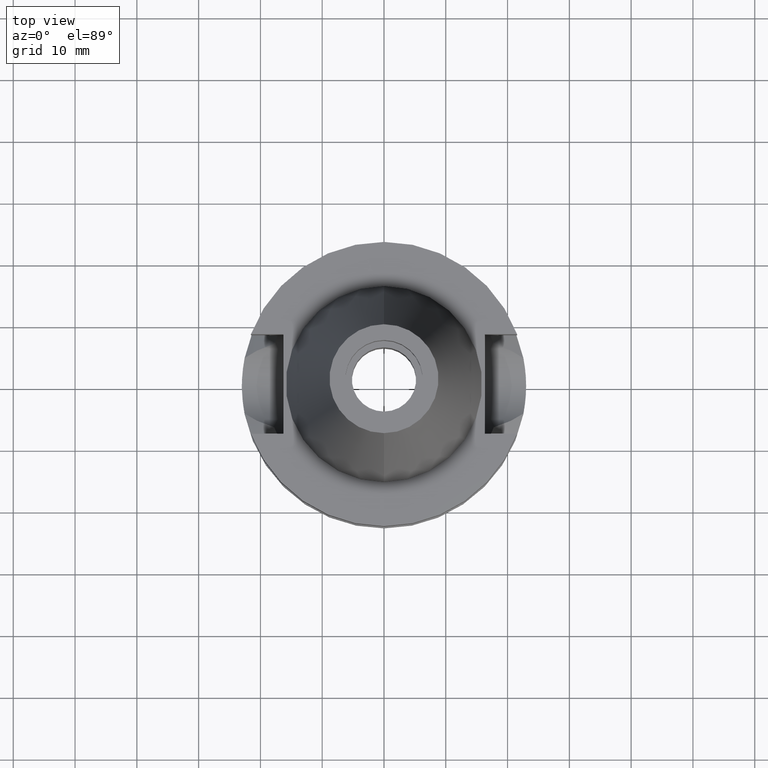
[diagram: clean part render]
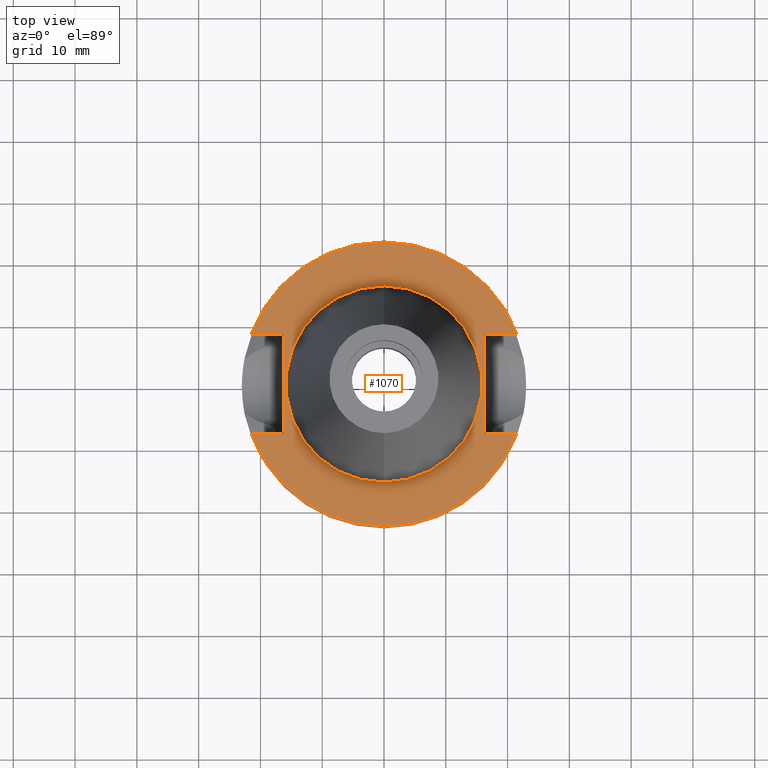
[diagram: same view with one face highlighted and labeled with its STEP entity id]
A machine part, top view. The second image highlights one B-rep face of the part: STEP entity #1070.
In plain terms, the highlighted planar face has unit normal (0, 0, -1).
Its self-contained STEP definition (entity closure, byte-faithful):
#41 = DIRECTION ( 'NONE',  ( -1.000000000000000000, 9.347030801892000173E-14, 0.0000000000000000000 ) ) ;
#45 = ORIENTED_EDGE ( 'NONE', *, *, #2276, .F. ) ;
#123 = VERTEX_POINT ( 'NONE', #1939 ) ;
#136 = EDGE_CURVE ( 'NONE', #1982, #123, #499, .T. ) ;
#147 = ORIENTED_EDGE ( 'NONE', *, *, #521, .F. ) ;
#198 = CARTESIAN_POINT ( 'NONE',  ( 16.29999999999999716, 8.050000000000000711, -1.000000000000000000 ) ) ;
#230 = ORIENTED_EDGE ( 'NONE', *, *, #1022, .F. ) ;
#356 = CARTESIAN_POINT ( 'NONE',  ( 0.0000000000000000000, 1.873342208656000186E-14, -1.000000000000000000 ) ) ;
#372 = VERTEX_POINT ( 'NONE', #1528 ) ;
#499 = LINE ( 'NONE', #2163, #699 ) ;
#500 = PLANE ( 'NONE',  #2941 ) ;
#521 = EDGE_CURVE ( 'NONE', #2523, #1716, #2833, .T. ) ;
#592 = ORIENTED_EDGE ( 'NONE', *, *, #626, .F. ) ;
#626 = EDGE_CURVE ( 'NONE', #2936, #372, #747, .T. ) ;
#679 = DIRECTION ( 'NONE',  ( 0.0000000000000000000, 0.0000000000000000000, 1.000000000000000000 ) ) ;
#685 = EDGE_CURVE ( 'NONE', #2629, #2936, #2553, .T. ) ;
#699 = VECTOR ( 'NONE', #41, 1000.000000000000000 ) ;
#709 = CARTESIAN_POINT ( 'NONE',  ( 21.54524309446999908, 8.050000000000000711, -1.000000000000000000 ) ) ;
#711 = LINE ( 'NONE', #2394, #1868 ) ;
#714 = DIRECTION ( 'NONE',  ( 0.0000000000000000000, -1.000000000000000000, 0.0000000000000000000 ) ) ;
#726 = EDGE_LOOP ( 'NONE', ( #147, #230 ) ) ;
#747 = CIRCLE ( 'NONE', #1196, 23.00000000000000000 ) ;
#814 = EDGE_CURVE ( 'NONE', #2551, #1982, #711, .T. ) ;
#841 = CARTESIAN_POINT ( 'NONE',  ( 16.29999999999999716, -8.050000000000000711, -1.000000000000000000 ) ) ;
#913 = CARTESIAN_POINT ( 'NONE',  ( 0.0000000000000000000, 1.873342208656000186E-14, -1.000000000000000000 ) ) ;
#936 = LINE ( 'NONE', #1882, #1023 ) ;
#1022 = EDGE_CURVE ( 'NONE', #1716, #2523, #1581, .T. ) ;
#1023 = VECTOR ( 'NONE', #1698, 1000.000000000000000 ) ;
#1053 = CARTESIAN_POINT ( 'NONE',  ( 0.0000000000000000000, 15.87500000000000000, -0.9999999999998000488 ) ) ;
#1070 = ADVANCED_FACE ( 'NONE', ( #2657, #1451 ), #500, .F. ) ;
#1074 = ORIENTED_EDGE ( 'NONE', *, *, #814, .F. ) ;
#1087 = AXIS2_PLACEMENT_3D ( 'NONE', #913, #1402, #2349 ) ;
#1112 = DIRECTION ( 'NONE',  ( 1.000000000000000000, -9.347030801892000173E-14, 0.0000000000000000000 ) ) ;
#1113 = ORIENTED_EDGE ( 'NONE', *, *, #2513, .T. ) ;
#1143 = VECTOR ( 'NONE', #2037, 1000.000000000000000 ) ;
#1196 = AXIS2_PLACEMENT_3D ( 'NONE', #356, #2785, #2097 ) ;
#1199 = DIRECTION ( 'NONE',  ( 0.0000000000000000000, 1.000000000000000000, 0.0000000000000000000 ) ) ;
#1275 = CARTESIAN_POINT ( 'NONE',  ( -16.29999999999999716, 8.050000000000000711, -1.000000000000000000 ) ) ;
#1284 = DIRECTION ( 'NONE',  ( 0.0000000000000000000, 1.000000000000000000, 0.0000000000000000000 ) ) ;
#1292 = LINE ( 'NONE', #2248, #1143 ) ;
#1307 = CARTESIAN_POINT ( 'NONE',  ( 16.29999999999999716, 8.050000000000000711, -1.000000000000000000 ) ) ;
#1332 = VERTEX_POINT ( 'NONE', #1307 ) ;
#1383 = LINE ( 'NONE', #198, #2296 ) ;
#1402 = DIRECTION ( 'NONE',  ( 0.0000000000000000000, 0.0000000000000000000, -1.000000000000000000 ) ) ;
#1432 = CARTESIAN_POINT ( 'NONE',  ( 21.54524309446999908, -8.050000000000000711, -1.000000000000000000 ) ) ;
#1451 = FACE_BOUND ( 'NONE', #726, .T. ) ;
#1465 = CARTESIAN_POINT ( 'NONE',  ( 0.0000000000000000000, -15.87500000000000000, -0.9999999999998000488 ) ) ;
#1510 = CARTESIAN_POINT ( 'NONE',  ( 0.0000000000000000000, 1.873342208656000186E-14, -0.9999999999998000488 ) ) ;
#1528 = CARTESIAN_POINT ( 'NONE',  ( -21.54524309446999908, -8.050000000000000711, -1.000000000000000000 ) ) ;
#1571 = CARTESIAN_POINT ( 'NONE',  ( 0.0000000000000000000, 1.873342208656000186E-14, -0.9999999999998000488 ) ) ;
#1577 = DIRECTION ( 'NONE',  ( 0.0000000000000000000, 0.0000000000000000000, 1.000000000000000000 ) ) ;
#1581 = CIRCLE ( 'NONE', #2787, 15.87500000000000000 ) ;
#1595 = ORIENTED_EDGE ( 'NONE', *, *, #2970, .F. ) ;
#1649 = EDGE_CURVE ( 'NONE', #1332, #2247, #936, .T. ) ;
#1698 = DIRECTION ( 'NONE',  ( 1.000000000000000000, 9.380896855521999773E-14, 0.0000000000000000000 ) ) ;
#1703 = DIRECTION ( 'NONE',  ( 0.0000000000000000000, 0.0000000000000000000, -1.000000000000000000 ) ) ;
#1716 = VERTEX_POINT ( 'NONE', #1465 ) ;
#1868 = VECTOR ( 'NONE', #1199, 1000.000000000000000 ) ;
#1882 = CARTESIAN_POINT ( 'NONE',  ( 16.29999999999999716, 8.050000000000000711, -1.000000000000000000 ) ) ;
#1903 = CIRCLE ( 'NONE', #1087, 23.00000000000000000 ) ;
#1920 = CARTESIAN_POINT ( 'NONE',  ( 16.29999999999999716, -8.050000000000000711, -1.000000000000000000 ) ) ;
#1939 = CARTESIAN_POINT ( 'NONE',  ( -21.54524309446999908, 8.050000000000000711, -1.000000000000000000 ) ) ;
#1982 = VERTEX_POINT ( 'NONE', #1275 ) ;
#2037 = DIRECTION ( 'NONE',  ( -1.000000000000000000, -9.313164748262000573E-14, 0.0000000000000000000 ) ) ;
#2040 = ORIENTED_EDGE ( 'NONE', *, *, #1649, .T. ) ;
#2042 = EDGE_LOOP ( 'NONE', ( #1113, #592, #2512, #1595, #2040, #45, #2470, #1074 ) ) ;
#2097 = DIRECTION ( 'NONE',  ( 0.0000000000000000000, -1.000000000000000000, 0.0000000000000000000 ) ) ;
#2162 = AXIS2_PLACEMENT_3D ( 'NONE', #1510, #1577, #1284 ) ;
#2163 = CARTESIAN_POINT ( 'NONE',  ( -16.29999999999999716, 8.050000000000000711, -1.000000000000000000 ) ) ;
#2247 = VERTEX_POINT ( 'NONE', #709 ) ;
#2248 = CARTESIAN_POINT ( 'NONE',  ( -16.29999999999999716, -8.050000000000000711, -1.000000000000000000 ) ) ;
#2276 = EDGE_CURVE ( 'NONE', #123, #2247, #1903, .T. ) ;
#2296 = VECTOR ( 'NONE', #714, 1000.000000000000000 ) ;
#2349 = DIRECTION ( 'NONE',  ( 0.0000000000000000000, 1.000000000000000000, 0.0000000000000000000 ) ) ;
#2394 = CARTESIAN_POINT ( 'NONE',  ( -16.29999999999999716, -8.050000000000000711, -1.000000000000000000 ) ) ;
#2417 = DIRECTION ( 'NONE',  ( 0.0000000000000000000, -1.000000000000000000, 0.0000000000000000000 ) ) ;
#2443 = CARTESIAN_POINT ( 'NONE',  ( -16.29999999999999716, -8.050000000000000711, -1.000000000000000000 ) ) ;
#2470 = ORIENTED_EDGE ( 'NONE', *, *, #136, .F. ) ;
#2512 = ORIENTED_EDGE ( 'NONE', *, *, #685, .F. ) ;
#2513 = EDGE_CURVE ( 'NONE', #2551, #372, #1292, .T. ) ;
#2523 = VERTEX_POINT ( 'NONE', #1053 ) ;
#2551 = VERTEX_POINT ( 'NONE', #2443 ) ;
#2553 = LINE ( 'NONE', #841, #3042 ) ;
#2587 = DIRECTION ( 'NONE',  ( 0.0000000000000000000, -1.000000000000000000, 0.0000000000000000000 ) ) ;
#2629 = VERTEX_POINT ( 'NONE', #1920 ) ;
#2657 = FACE_OUTER_BOUND ( 'NONE', #2042, .T. ) ;
#2785 = DIRECTION ( 'NONE',  ( 0.0000000000000000000, 0.0000000000000000000, -1.000000000000000000 ) ) ;
#2787 = AXIS2_PLACEMENT_3D ( 'NONE', #1571, #679, #2587 ) ;
#2833 = CIRCLE ( 'NONE', #2162, 15.87500000000000000 ) ;
#2898 = CARTESIAN_POINT ( 'NONE',  ( 0.0000000000000000000, 1.212400331155999925E-14, -1.000000000000000000 ) ) ;
#2936 = VERTEX_POINT ( 'NONE', #1432 ) ;
#2941 = AXIS2_PLACEMENT_3D ( 'NONE', #2898, #1703, #2417 ) ;
#2970 = EDGE_CURVE ( 'NONE', #1332, #2629, #1383, .T. ) ;
#3042 = VECTOR ( 'NONE', #1112, 1000.000000000000000 ) ;